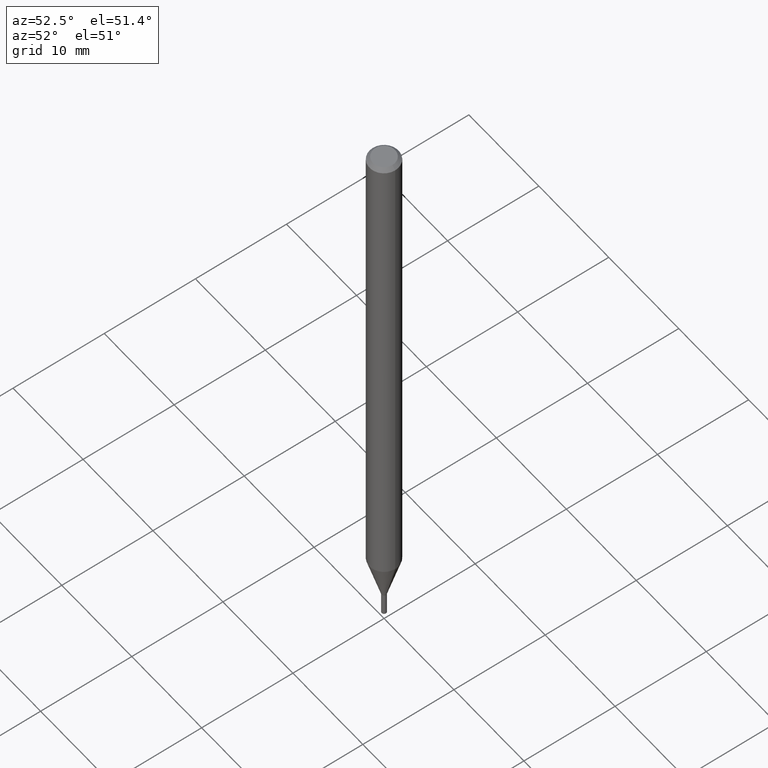
[diagram: clean part render]
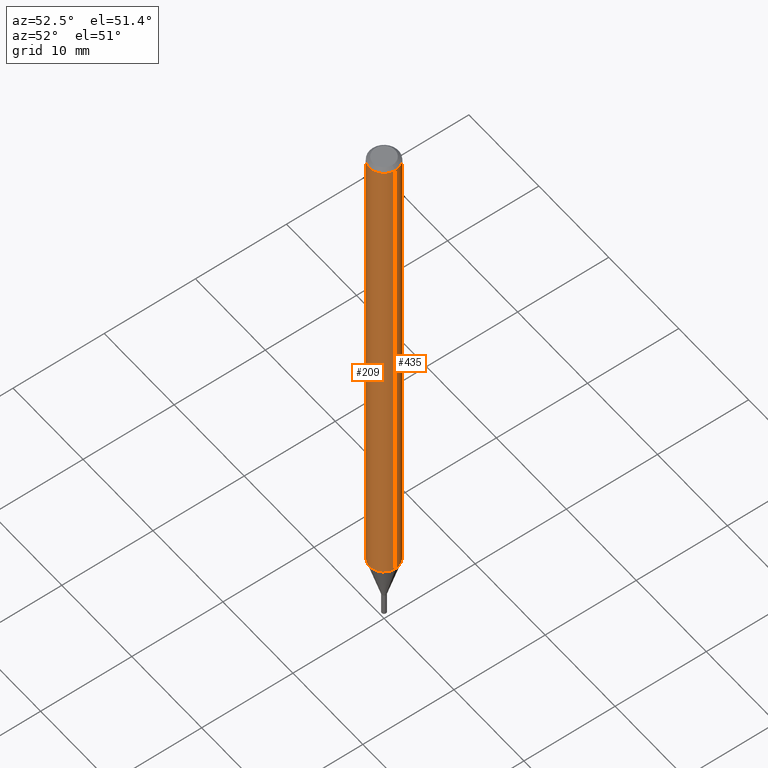
[diagram: same view with one multi-face feature highlighted, each face labeled with its STEP entity id]
A machine part, auxiliary view. The highlighted faces form ONE feature: a constant-radius fillet chain: 2 tangent blend faces with common blend radius 1.5875 mm. The faces share edges in the B-rep.
Their STEP definitions:
[1] entity #435 (Cylinder):
#14 = EDGE_LOOP ( 'NONE', ( #451, #278, #128, #56 ) ) ;
#23 = VECTOR ( 'NONE', #136, 39.37007874015748143 ) ;
#31 = VERTEX_POINT ( 'NONE', #202 ) ;
#40 = CARTESIAN_POINT ( 'NONE',  ( 0.06250000000000000000, -8.131895128691275373E-15, -2.204067332602633211 ) ) ;
#56 = ORIENTED_EDGE ( 'NONE', *, *, #369, .F. ) ;
#66 = LINE ( 'NONE', #426, #23 ) ;
#87 = CYLINDRICAL_SURFACE ( 'NONE', #324, 0.06250000000000000000 ) ;
#98 = VERTEX_POINT ( 'NONE', #40 ) ;
#100 = CARTESIAN_POINT ( 'NONE',  ( -0.06250000000000000000, 4.440892098500626162E-16, -3.074334431409316114E-30 ) ) ;
#124 = AXIS2_PLACEMENT_3D ( 'NONE', #194, #303, #417 ) ;
#128 = ORIENTED_EDGE ( 'NONE', *, *, #155, .F. ) ;
#133 = DIRECTION ( 'NONE',  ( -2.445468806185136597E-29, 3.491481338843145583E-15, 1.000000000000000000 ) ) ;
#136 = DIRECTION ( 'NONE',  ( -2.445468806185136877E-29, 3.491481338843145188E-15, 1.000000000000000000 ) ) ;
#155 = EDGE_CURVE ( 'NONE', #31, #347, #207, .T. ) ;
#161 = DIRECTION ( 'NONE',  ( -2.445468806185136597E-29, 3.491481338843145583E-15, 1.000000000000000000 ) ) ;
#170 = CARTESIAN_POINT ( 'NONE',  ( -0.06250000000000000000, -7.251370751485821088E-15, -2.204067332602633211 ) ) ;
#194 = CARTESIAN_POINT ( 'NONE',  ( 3.668203209277705088E-31, -5.237222008264718399E-17, -0.01499999999999999944 ) ) ;
#202 = CARTESIAN_POINT ( 'NONE',  ( 0.06250000000000000000, -4.888073874380388472E-16, -0.01499999999999999944 ) ) ;
#207 = CIRCLE ( 'NONE', #124, 0.06250000000000000000 ) ;
#245 = DIRECTION ( 'NONE',  ( 1.000000000000000000, -6.982962677686262766E-15, 0.000000000000000000 ) ) ;
#251 = AXIS2_PLACEMENT_3D ( 'NONE', #421, #133, #245 ) ;
#255 = DIRECTION ( 'NONE',  ( -2.445468806185136877E-29, 3.491481338843145188E-15, 1.000000000000000000 ) ) ;
#278 = ORIENTED_EDGE ( 'NONE', *, *, #382, .T. ) ;
#281 = LINE ( 'NONE', #100, #346 ) ;
#303 = DIRECTION ( 'NONE',  ( -2.445468806185136597E-29, 3.491481338843145583E-15, 1.000000000000000000 ) ) ;
#324 = AXIS2_PLACEMENT_3D ( 'NONE', #370, #161, #377 ) ;
#346 = VECTOR ( 'NONE', #255, 39.37007874015748143 ) ;
#347 = VERTEX_POINT ( 'NONE', #439 ) ;
#365 = VERTEX_POINT ( 'NONE', #170 ) ;
#369 = EDGE_CURVE ( 'NONE', #98, #31, #66, .T. ) ;
#370 = CARTESIAN_POINT ( 'NONE',  ( 0.000000000000000000, 0.000000000000000000, 0.000000000000000000 ) ) ;
#372 = CIRCLE ( 'NONE', #251, 0.06250000000000000000 ) ;
#377 = DIRECTION ( 'NONE',  ( 1.000000000000000000, -6.982962677686266711E-15, 4.876176775795935793E-29 ) ) ;
#382 = EDGE_CURVE ( 'NONE', #365, #347, #281, .T. ) ;
#417 = DIRECTION ( 'NONE',  ( 1.000000000000000000, -6.982962677686266711E-15, 0.000000000000000000 ) ) ;
#421 = CARTESIAN_POINT ( 'NONE',  ( 5.389977908611419802E-29, -7.695459961335882126E-15, -2.204067332602633211 ) ) ;
#426 = CARTESIAN_POINT ( 'NONE',  ( 0.06250000000000000000, -4.364351673553916694E-16, 3.047610484872459871E-30 ) ) ;
#435 = ADVANCED_FACE ( 'NONE', ( #448 ), #87, .T. ) ;
#439 = CARTESIAN_POINT ( 'NONE',  ( -0.06250000000000000000, -3.429826880859202578E-15, -0.01499999999999999944 ) ) ;
#448 = FACE_OUTER_BOUND ( 'NONE', #14, .T. ) ;
#451 = ORIENTED_EDGE ( 'NONE', *, *, #454, .T. ) ;
#454 = EDGE_CURVE ( 'NONE', #98, #365, #372, .T. ) ;
[2] entity #209 (Cylinder):
#23 = VECTOR ( 'NONE', #136, 39.37007874015748143 ) ;
#31 = VERTEX_POINT ( 'NONE', #202 ) ;
#40 = CARTESIAN_POINT ( 'NONE',  ( 0.06250000000000000000, -8.131895128691275373E-15, -2.204067332602633211 ) ) ;
#66 = LINE ( 'NONE', #426, #23 ) ;
#78 = CIRCLE ( 'NONE', #166, 0.06250000000000000000 ) ;
#98 = VERTEX_POINT ( 'NONE', #40 ) ;
#100 = CARTESIAN_POINT ( 'NONE',  ( -0.06250000000000000000, 4.440892098500626162E-16, -3.074334431409316114E-30 ) ) ;
#117 = DIRECTION ( 'NONE',  ( -2.445468806185136597E-29, 3.491481338843145583E-15, 1.000000000000000000 ) ) ;
#119 = CARTESIAN_POINT ( 'NONE',  ( 3.668203209277705088E-31, -5.237222008264718399E-17, -0.01499999999999999944 ) ) ;
#131 = DIRECTION ( 'NONE',  ( 1.000000000000000000, -6.982962677686266711E-15, 0.000000000000000000 ) ) ;
#136 = DIRECTION ( 'NONE',  ( -2.445468806185136877E-29, 3.491481338843145188E-15, 1.000000000000000000 ) ) ;
#166 = AXIS2_PLACEMENT_3D ( 'NONE', #119, #232, #131 ) ;
#170 = CARTESIAN_POINT ( 'NONE',  ( -0.06250000000000000000, -7.251370751485821088E-15, -2.204067332602633211 ) ) ;
#190 = CARTESIAN_POINT ( 'NONE',  ( 5.389977908611419802E-29, -7.695459961335882126E-15, -2.204067332602633211 ) ) ;
#191 = EDGE_LOOP ( 'NONE', ( #352, #195, #318, #312 ) ) ;
#192 = CIRCLE ( 'NONE', #291, 0.06250000000000000000 ) ;
#195 = ORIENTED_EDGE ( 'NONE', *, *, #220, .T. ) ;
#202 = CARTESIAN_POINT ( 'NONE',  ( 0.06250000000000000000, -4.888073874380388472E-16, -0.01499999999999999944 ) ) ;
#209 = ADVANCED_FACE ( 'NONE', ( #262 ), #294, .T. ) ;
#220 = EDGE_CURVE ( 'NONE', #365, #98, #192, .T. ) ;
#223 = DIRECTION ( 'NONE',  ( 1.000000000000000000, -6.982962677686266711E-15, 4.876176775795935793E-29 ) ) ;
#232 = DIRECTION ( 'NONE',  ( -2.445468806185136597E-29, 3.491481338843145583E-15, 1.000000000000000000 ) ) ;
#235 = AXIS2_PLACEMENT_3D ( 'NONE', #264, #297, #223 ) ;
#255 = DIRECTION ( 'NONE',  ( -2.445468806185136877E-29, 3.491481338843145188E-15, 1.000000000000000000 ) ) ;
#262 = FACE_OUTER_BOUND ( 'NONE', #191, .T. ) ;
#264 = CARTESIAN_POINT ( 'NONE',  ( 0.000000000000000000, 0.000000000000000000, 0.000000000000000000 ) ) ;
#281 = LINE ( 'NONE', #100, #346 ) ;
#289 = EDGE_CURVE ( 'NONE', #347, #31, #78, .T. ) ;
#291 = AXIS2_PLACEMENT_3D ( 'NONE', #190, #117, #357 ) ;
#294 = CYLINDRICAL_SURFACE ( 'NONE', #235, 0.06250000000000000000 ) ;
#297 = DIRECTION ( 'NONE',  ( -2.445468806185136597E-29, 3.491481338843145583E-15, 1.000000000000000000 ) ) ;
#312 = ORIENTED_EDGE ( 'NONE', *, *, #289, .F. ) ;
#318 = ORIENTED_EDGE ( 'NONE', *, *, #369, .T. ) ;
#346 = VECTOR ( 'NONE', #255, 39.37007874015748143 ) ;
#347 = VERTEX_POINT ( 'NONE', #439 ) ;
#352 = ORIENTED_EDGE ( 'NONE', *, *, #382, .F. ) ;
#357 = DIRECTION ( 'NONE',  ( 1.000000000000000000, -6.982962677686262766E-15, 0.000000000000000000 ) ) ;
#365 = VERTEX_POINT ( 'NONE', #170 ) ;
#369 = EDGE_CURVE ( 'NONE', #98, #31, #66, .T. ) ;
#382 = EDGE_CURVE ( 'NONE', #365, #347, #281, .T. ) ;
#426 = CARTESIAN_POINT ( 'NONE',  ( 0.06250000000000000000, -4.364351673553916694E-16, 3.047610484872459871E-30 ) ) ;
#439 = CARTESIAN_POINT ( 'NONE',  ( -0.06250000000000000000, -3.429826880859202578E-15, -0.01499999999999999944 ) ) ;